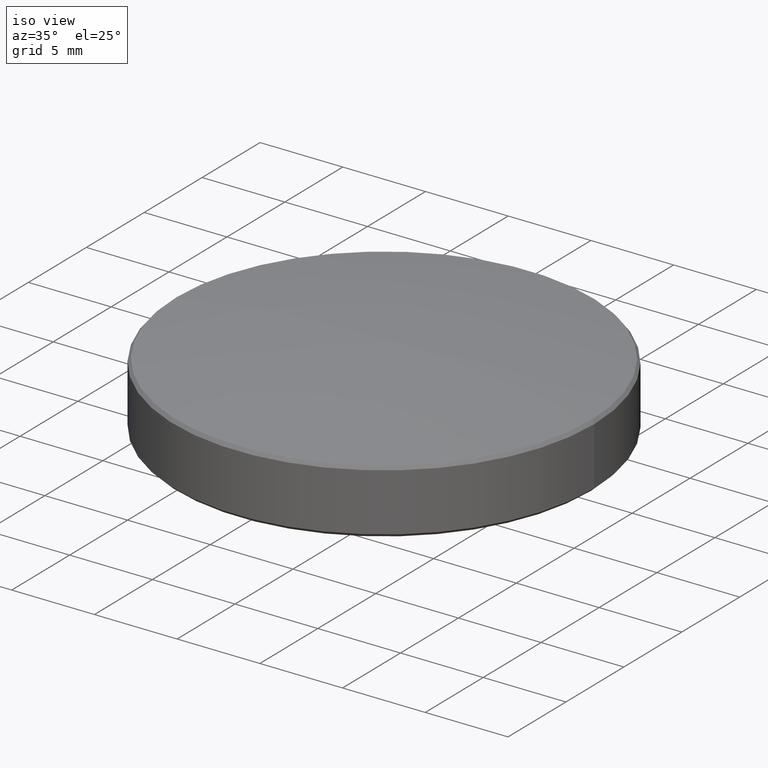
[diagram: clean part render]
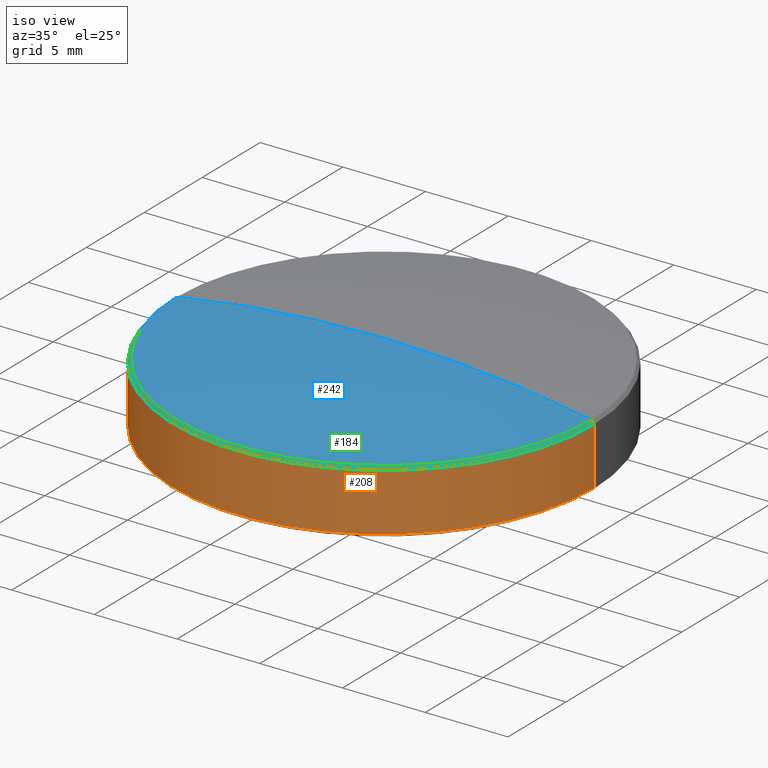
[diagram: same view with three faces highlighted in distinct colors, each labeled with its STEP entity id]
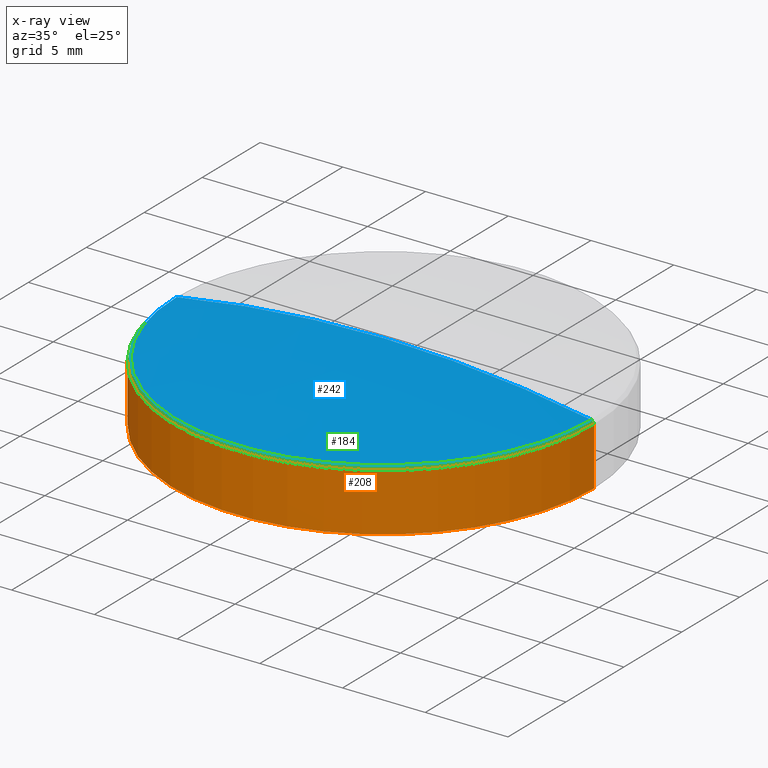
[diagram: x-ray of the same camera — body ghosted, the three highlighted faces saturated]
A machine part, iso view with three faces highlighted in distinct colors.
The next image is the same camera in x-ray (body ghosted, the three faces saturated) — at least one of them is partly hidden behind the body in this view.
Their STEP definitions:

[orange] entity #208 — the highlighted cylindrical surface (partial cylindrical patch) has radius 12.7 mm, axis along (-0, -0, -1).
#20 = DIRECTION ( 'NONE',  ( -0.000000000000000000, -0.000000000000000000, 1.000000000000000000 ) ) ;
#24 = AXIS2_PLACEMENT_3D ( 'NONE', #77, #20, #116 ) ;
#27 = LINE ( 'NONE', #110, #42 ) ;
#28 = EDGE_LOOP ( 'NONE', ( #148, #178, #47, #214 ) ) ;
#30 = VERTEX_POINT ( 'NONE', #258 ) ;
#31 = CARTESIAN_POINT ( 'NONE',  ( 0.000000000000000000, 0.000000000000000000, 3.879999999999999893 ) ) ;
#38 = CIRCLE ( 'NONE', #24, 12.69999999999999929 ) ;
#41 = VECTOR ( 'NONE', #150, 1000.000000000000000 ) ;
#42 = VECTOR ( 'NONE', #237, 1000.000000000000000 ) ;
#45 = AXIS2_PLACEMENT_3D ( 'NONE', #179, #159, #74 ) ;
#47 = ORIENTED_EDGE ( 'NONE', *, *, #54, .T. ) ;
#53 = AXIS2_PLACEMENT_3D ( 'NONE', #31, #63, #57 ) ;
#54 = EDGE_CURVE ( 'NONE', #191, #238, #132, .T. ) ;
#57 = DIRECTION ( 'NONE',  ( -1.000000000000000000, 0.000000000000000000, 0.000000000000000000 ) ) ;
#63 = DIRECTION ( 'NONE',  ( -0.000000000000000000, -0.000000000000000000, -1.000000000000000000 ) ) ;
#74 = DIRECTION ( 'NONE',  ( 1.000000000000000000, 0.000000000000000000, 0.000000000000000000 ) ) ;
#77 = CARTESIAN_POINT ( 'NONE',  ( 0.000000000000000000, 0.000000000000000000, 0.1999999999999987899 ) ) ;
#90 = CARTESIAN_POINT ( 'NONE',  ( -12.69999999999999929, 0.000000000000000000, 3.879999999999999893 ) ) ;
#97 = FACE_OUTER_BOUND ( 'NONE', #28, .T. ) ;
#99 = EDGE_CURVE ( 'NONE', #255, #30, #27, .T. ) ;
#100 = CARTESIAN_POINT ( 'NONE',  ( -12.69999999999999929, 0.000000000000000000, 0.1999999999999987899 ) ) ;
#110 = CARTESIAN_POINT ( 'NONE',  ( 12.69999999999999929, 1.555301434917138433E-15, 3.879999999999999893 ) ) ;
#116 = DIRECTION ( 'NONE',  ( 1.000000000000000000, 0.000000000000000000, 0.000000000000000000 ) ) ;
#121 = CARTESIAN_POINT ( 'NONE',  ( 12.69999999999999929, 1.555301434917138433E-15, 3.698237612947643971 ) ) ;
#132 = LINE ( 'NONE', #90, #41 ) ;
#148 = ORIENTED_EDGE ( 'NONE', *, *, #99, .F. ) ;
#150 = DIRECTION ( 'NONE',  ( -0.000000000000000000, -0.000000000000000000, -1.000000000000000000 ) ) ;
#152 = EDGE_CURVE ( 'NONE', #255, #191, #186, .T. ) ;
#158 = CYLINDRICAL_SURFACE ( 'NONE', #53, 12.69999999999999929 ) ;
#159 = DIRECTION ( 'NONE',  ( 0.000000000000000000, 0.000000000000000000, -1.000000000000000000 ) ) ;
#178 = ORIENTED_EDGE ( 'NONE', *, *, #152, .T. ) ;
#179 = CARTESIAN_POINT ( 'NONE',  ( 0.000000000000000000, 0.000000000000000000, 3.698237612947643971 ) ) ;
#180 = CARTESIAN_POINT ( 'NONE',  ( -12.69999999999999929, 0.000000000000000000, 3.698237612947643971 ) ) ;
#186 = CIRCLE ( 'NONE', #45, 12.69999999999999929 ) ;
#191 = VERTEX_POINT ( 'NONE', #180 ) ;
#208 = ADVANCED_FACE ( 'NONE', ( #97 ), #158, .T. ) ;
#214 = ORIENTED_EDGE ( 'NONE', *, *, #230, .T. ) ;
#230 = EDGE_CURVE ( 'NONE', #238, #30, #38, .T. ) ;
#237 = DIRECTION ( 'NONE',  ( -0.000000000000000000, -0.000000000000000000, -1.000000000000000000 ) ) ;
#238 = VERTEX_POINT ( 'NONE', #100 ) ;
#255 = VERTEX_POINT ( 'NONE', #121 ) ;
#258 = CARTESIAN_POINT ( 'NONE',  ( 12.69999999999999929, 1.555301434917138433E-15, 0.1999999999999987899 ) ) ;

[blue] entity #242 — the highlighted spherical surface has radius 71.66 mm.
#14 = EDGE_CURVE ( 'NONE', #217, #95, #168, .T. ) ;
#16 = AXIS2_PLACEMENT_3D ( 'NONE', #32, #115, #18 ) ;
#18 = DIRECTION ( 'NONE',  ( -1.000000000000000000, 0.000000000000000000, 1.936615658360934486E-16 ) ) ;
#29 = DIRECTION ( 'NONE',  ( -1.000000000000000000, -1.224646799147353454E-16, 0.000000000000000000 ) ) ;
#32 = CARTESIAN_POINT ( 'NONE',  ( 0.000000000000000000, 0.000000000000000000, -66.65999999999999659 ) ) ;
#33 = EDGE_CURVE ( 'NONE', #95, #52, #166, .T. ) ;
#51 = CARTESIAN_POINT ( 'NONE',  ( 0.000000000000000000, 0.000000000000000000, 3.895154035038178364 ) ) ;
#52 = VERTEX_POINT ( 'NONE', #93 ) ;
#58 = CARTESIAN_POINT ( 'NONE',  ( 4.387909481344959759E-15, 0.000000000000000000, 5.000000000000004441 ) ) ;
#65 = EDGE_CURVE ( 'NONE', #217, #52, #130, .T. ) ;
#73 = ORIENTED_EDGE ( 'NONE', *, *, #65, .F. ) ;
#87 = CARTESIAN_POINT ( 'NONE',  ( -12.53498460677301729, 0.000000000000000000, 3.895154035038178364 ) ) ;
#92 = DIRECTION ( 'NONE',  ( -1.224646799147353207E-16, 1.000000000000000000, 1.499759782661856513E-32 ) ) ;
#93 = CARTESIAN_POINT ( 'NONE',  ( 12.53498460677301729, 1.535092877604591061E-15, 3.895154035038178364 ) ) ;
#95 = VERTEX_POINT ( 'NONE', #87 ) ;
#112 = EDGE_LOOP ( 'NONE', ( #73, #167, #229 ) ) ;
#115 = DIRECTION ( 'NONE',  ( 0.000000000000000000, 1.000000000000000000, -0.000000000000000000 ) ) ;
#122 = AXIS2_PLACEMENT_3D ( 'NONE', #51, #146, #193 ) ;
#130 = CIRCLE ( 'NONE', #202, 71.65999999999999659 ) ;
#146 = DIRECTION ( 'NONE',  ( -0.000000000000000000, -0.000000000000000000, 1.000000000000000000 ) ) ;
#154 = FACE_OUTER_BOUND ( 'NONE', #112, .T. ) ;
#161 = AXIS2_PLACEMENT_3D ( 'NONE', #169, #196, #253 ) ;
#166 = CIRCLE ( 'NONE', #122, 12.53498460677301907 ) ;
#167 = ORIENTED_EDGE ( 'NONE', *, *, #14, .T. ) ;
#168 = CIRCLE ( 'NONE', #161, 71.65999999999999659 ) ;
#169 = CARTESIAN_POINT ( 'NONE',  ( 0.000000000000000000, 0.000000000000000000, -66.65999999999999659 ) ) ;
#193 = DIRECTION ( 'NONE',  ( -1.000000000000000000, 0.000000000000000000, 0.000000000000000000 ) ) ;
#196 = DIRECTION ( 'NONE',  ( 0.000000000000000000, -1.000000000000000000, 0.000000000000000000 ) ) ;
#202 = AXIS2_PLACEMENT_3D ( 'NONE', #236, #92, #29 ) ;
#217 = VERTEX_POINT ( 'NONE', #58 ) ;
#219 = SPHERICAL_SURFACE ( 'NONE', #16, 71.65999999999999659 ) ;
#229 = ORIENTED_EDGE ( 'NONE', *, *, #33, .T. ) ;
#236 = CARTESIAN_POINT ( 'NONE',  ( 0.000000000000000000, 0.000000000000000000, -66.65999999999999659 ) ) ;
#242 = ADVANCED_FACE ( 'NONE', ( #154 ), #219, .T. ) ;
#253 = DIRECTION ( 'NONE',  ( 0.000000000000000000, 0.000000000000000000, -1.000000000000000000 ) ) ;

[green] entity #184 — the highlighted conical surface has half-angle 39.963 deg.
#12 = ORIENTED_EDGE ( 'NONE', *, *, #33, .F. ) ;
#15 = DIRECTION ( 'NONE',  ( -1.000000000000000000, 0.000000000000000000, 0.000000000000000000 ) ) ;
#33 = EDGE_CURVE ( 'NONE', #95, #52, #166, .T. ) ;
#45 = AXIS2_PLACEMENT_3D ( 'NONE', #179, #159, #74 ) ;
#51 = CARTESIAN_POINT ( 'NONE',  ( 0.000000000000000000, 0.000000000000000000, 3.895154035038178364 ) ) ;
#52 = VERTEX_POINT ( 'NONE', #93 ) ;
#74 = DIRECTION ( 'NONE',  ( 1.000000000000000000, 0.000000000000000000, 0.000000000000000000 ) ) ;
#79 = CARTESIAN_POINT ( 'NONE',  ( 0.000000000000000000, 0.000000000000000000, 3.895154035038178364 ) ) ;
#81 = ORIENTED_EDGE ( 'NONE', *, *, #152, .F. ) ;
#87 = CARTESIAN_POINT ( 'NONE',  ( -12.53498460677301729, 0.000000000000000000, 3.895154035038178364 ) ) ;
#93 = CARTESIAN_POINT ( 'NONE',  ( 12.53498460677301729, 1.535092877604591061E-15, 3.895154035038178364 ) ) ;
#94 = DIRECTION ( 'NONE',  ( 0.6422915872619319178, 7.865803364595977467E-17, -0.7664603818414543746 ) ) ;
#95 = VERTEX_POINT ( 'NONE', #87 ) ;
#113 = ORIENTED_EDGE ( 'NONE', *, *, #126, .F. ) ;
#119 = DIRECTION ( 'NONE',  ( 0.000000000000000000, 0.000000000000000000, -1.000000000000000000 ) ) ;
#120 = EDGE_LOOP ( 'NONE', ( #113, #12, #175, #81 ) ) ;
#121 = CARTESIAN_POINT ( 'NONE',  ( 12.69999999999999929, 1.555301434917138433E-15, 3.698237612947643971 ) ) ;
#122 = AXIS2_PLACEMENT_3D ( 'NONE', #51, #146, #193 ) ;
#126 = EDGE_CURVE ( 'NONE', #52, #255, #155, .T. ) ;
#135 = FACE_OUTER_BOUND ( 'NONE', #120, .T. ) ;
#137 = CARTESIAN_POINT ( 'NONE',  ( -12.53498460677301729, 0.000000000000000000, 3.895154035038178364 ) ) ;
#138 = CARTESIAN_POINT ( 'NONE',  ( 12.53498460677301729, 1.535092877604592047E-15, 3.895154035038178364 ) ) ;
#146 = DIRECTION ( 'NONE',  ( -0.000000000000000000, -0.000000000000000000, 1.000000000000000000 ) ) ;
#152 = EDGE_CURVE ( 'NONE', #255, #191, #186, .T. ) ;
#153 = DIRECTION ( 'NONE',  ( -0.6422915872619319178, 0.000000000000000000, -0.7664603818414543746 ) ) ;
#155 = LINE ( 'NONE', #138, #209 ) ;
#159 = DIRECTION ( 'NONE',  ( 0.000000000000000000, 0.000000000000000000, -1.000000000000000000 ) ) ;
#166 = CIRCLE ( 'NONE', #122, 12.53498460677301907 ) ;
#175 = ORIENTED_EDGE ( 'NONE', *, *, #195, .T. ) ;
#179 = CARTESIAN_POINT ( 'NONE',  ( 0.000000000000000000, 0.000000000000000000, 3.698237612947643971 ) ) ;
#180 = CARTESIAN_POINT ( 'NONE',  ( -12.69999999999999929, 0.000000000000000000, 3.698237612947643971 ) ) ;
#184 = ADVANCED_FACE ( 'NONE', ( #135 ), #204, .T. ) ;
#186 = CIRCLE ( 'NONE', #45, 12.69999999999999929 ) ;
#191 = VERTEX_POINT ( 'NONE', #180 ) ;
#193 = DIRECTION ( 'NONE',  ( -1.000000000000000000, 0.000000000000000000, 0.000000000000000000 ) ) ;
#195 = EDGE_CURVE ( 'NONE', #95, #191, #239, .T. ) ;
#204 = CONICAL_SURFACE ( 'NONE', #247, 12.53498460677301729, 0.6974843652732920507 ) ;
#209 = VECTOR ( 'NONE', #94, 1000.000000000000227 ) ;
#216 = VECTOR ( 'NONE', #153, 1000.000000000000227 ) ;
#239 = LINE ( 'NONE', #137, #216 ) ;
#247 = AXIS2_PLACEMENT_3D ( 'NONE', #79, #119, #15 ) ;
#255 = VERTEX_POINT ( 'NONE', #121 ) ;